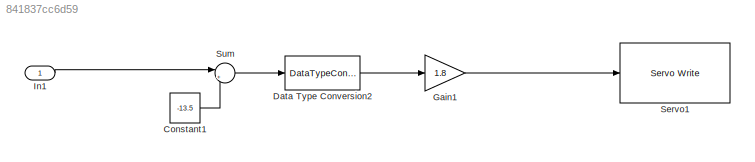
MODEL slx_841837cc6d59
KIND model
CONFIG AbsTol = auto
CONFIG EnableMultiTasking = off
CONFIG FixedStep = auto
CONFIG MaxStep = auto
CONFIG MinStep = auto
CONFIG RelTol = 1e-3
CONFIG SampleTimeConstraint = Unconstrained
CONFIG Solver = VariableStepAuto
CONFIG SolverName = VariableStepAuto
CONFIG StartTime = 0.0
CONFIG StopTime = inf
BLOCK [Constant] Constant1
  Value = -13.5
BLOCK [DataTypeConversion] Data Type Conversion2
  OutDataTypeStr = double
  RndMeth = Floor
  SaturateOnIntegerOverflow = off
BLOCK [Gain] Gain1
  Gain = 1.8
  OutDataTypeStr = Inherit: Inherit via internal rule
  ParamDataTypeStr = Inherit: Inherit via internal rule
  SaturateOnIntegerOverflow = off
BLOCK [Inport] In1
  IconDisplay = Port number
BLOCK [Reference] Servo1  REF=frdmtfcshieldlib/Servo Write
  Ports = [1]
  SourceBlock = frdmtfcshieldlib/Servo Write
  SourceProductBaseCode = EC_FREEDOM_BOARD
  SourceProductName = Simulink Coder Support Package for NXP FRDM-KL25Z Board
  SourceType = Servo Write
BLOCK [Sum] Sum
  IconShape = round
  InputSameDT = off
  Inputs = |+-
  OutDataTypeStr = Inherit: Inherit via internal rule
  Ports = [2, 1]
  SaturateOnIntegerOverflow = off
LINE Constant1:1 -> Sum:2
LINE Data Type Conversion2:1 -> Gain1:1
LINE Gain1:1 -> Servo1:1
LINE In1:1 -> Sum:1
LINE Sum:1 -> Data Type Conversion2:1
